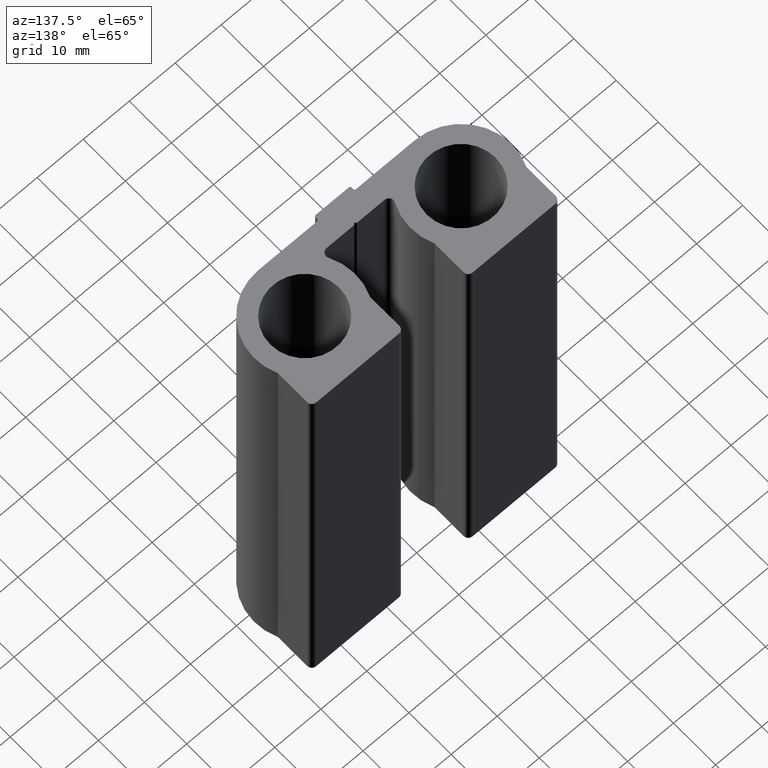
[diagram: clean part render]
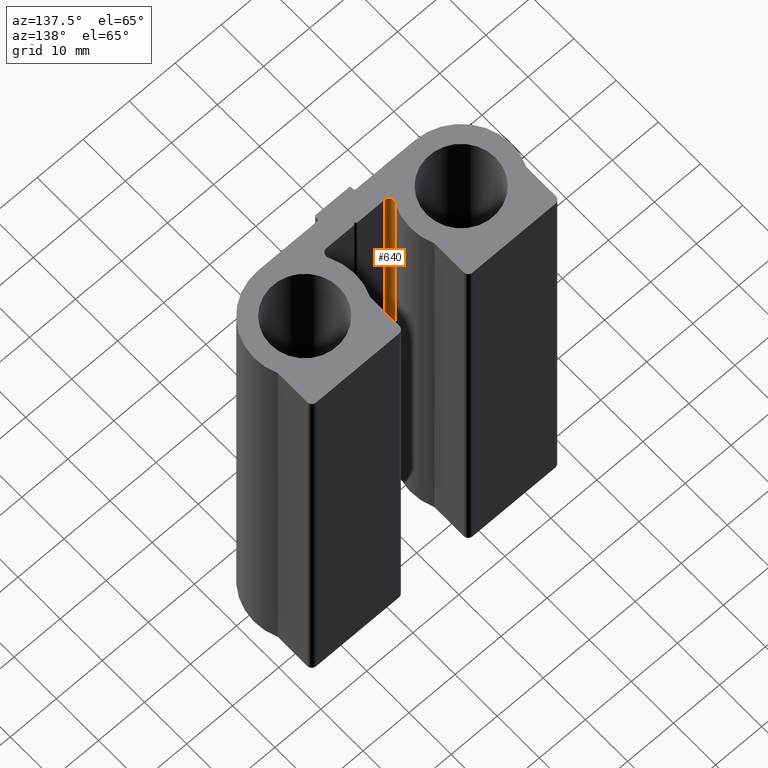
[diagram: same view with one face highlighted and labeled with its STEP entity id]
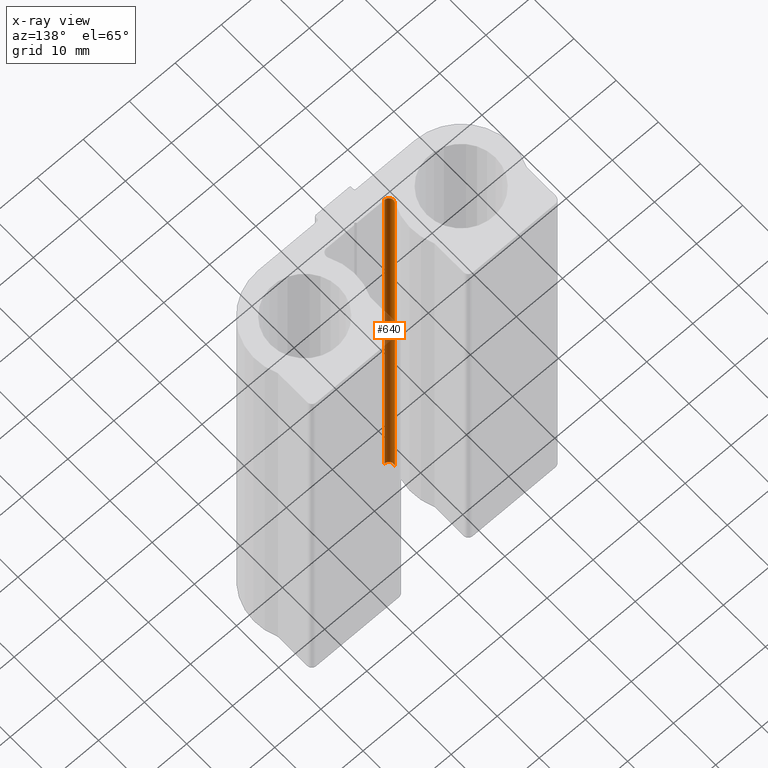
[diagram: x-ray of the same camera — body ghosted, the highlighted face saturated]
A machine part, auxiliary view. The second image highlights one B-rep face of the part: STEP entity #640.
The next image is the same camera in x-ray: the body ghosted, the highlighted face saturated — about 56% of this face is hidden behind the body in this view.
In plain terms, the highlighted cylindrical surface (edge-blend (fillet) strip) has radius 1 mm, axis along (0, 0, 1).
Its self-contained STEP definition (entity closure, byte-faithful):
#70=LINE('',#1077,#129);
#71=LINE('',#1083,#130);
#129=VECTOR('',#886,100.);
#130=VECTOR('',#893,100.);
#185=FACE_OUTER_BOUND('',#220,.T.);
#220=EDGE_LOOP('',(#525,#526,#527,#528));
#258=CIRCLE('',#706,0.999997775475729);
#259=CIRCLE('',#707,0.999997775475729);
#318=VERTEX_POINT('',#1073);
#319=VERTEX_POINT('',#1075);
#320=VERTEX_POINT('',#1079);
#321=VERTEX_POINT('',#1081);
#407=EDGE_CURVE('',#318,#319,#70,.T.);
#408=EDGE_CURVE('',#318,#320,#258,.T.);
#409=EDGE_CURVE('',#321,#319,#259,.T.);
#410=EDGE_CURVE('',#320,#321,#71,.T.);
#525=ORIENTED_EDGE('',*,*,#408,.F.);
#526=ORIENTED_EDGE('',*,*,#407,.T.);
#527=ORIENTED_EDGE('',*,*,#409,.F.);
#528=ORIENTED_EDGE('',*,*,#410,.F.);
#610=CYLINDRICAL_SURFACE('',#705,0.999997775475729);
#640=ADVANCED_FACE('',(#185),#610,.F.);
#705=AXIS2_PLACEMENT_3D('',#1078,#887,#888);
#706=AXIS2_PLACEMENT_3D('',#1080,#889,#890);
#707=AXIS2_PLACEMENT_3D('',#1082,#891,#892);
#886=DIRECTION('',(0.,0.,1.));
#887=DIRECTION('center_axis',(0.,0.,1.));
#888=DIRECTION('ref_axis',(-0.888782833023241,0.458328567430814,0.));
#889=DIRECTION('center_axis',(0.,0.,1.));
#890=DIRECTION('ref_axis',(-0.888782833023241,0.458328567430814,0.));
#891=DIRECTION('center_axis',(0.,0.,-1.));
#892=DIRECTION('ref_axis',(-0.888782833023241,0.458328567430814,0.));
#893=DIRECTION('',(0.,0.,1.));
#1073=CARTESIAN_POINT('',(-7.22340474316163,6.95832195332823,0.));
#1075=CARTESIAN_POINT('',(-7.22340474316163,6.95832195332823,100.));
#1077=CARTESIAN_POINT('',(-7.22340474316163,6.95832195332823,0.));
#1078=CARTESIAN_POINT('Origin',(-6.33462388725737,6.49999440546044,0.));
#1079=CARTESIAN_POINT('',(-6.33462402072662,5.49999662998472,0.));
#1080=CARTESIAN_POINT('Origin',(-6.33462388725737,6.49999440546044,0.));
#1081=CARTESIAN_POINT('',(-6.33462402072662,5.49999662998472,100.));
#1082=CARTESIAN_POINT('Origin',(-6.33462388725737,6.49999440546044,100.));
#1083=CARTESIAN_POINT('',(-6.33462402072662,5.49999662998472,0.));